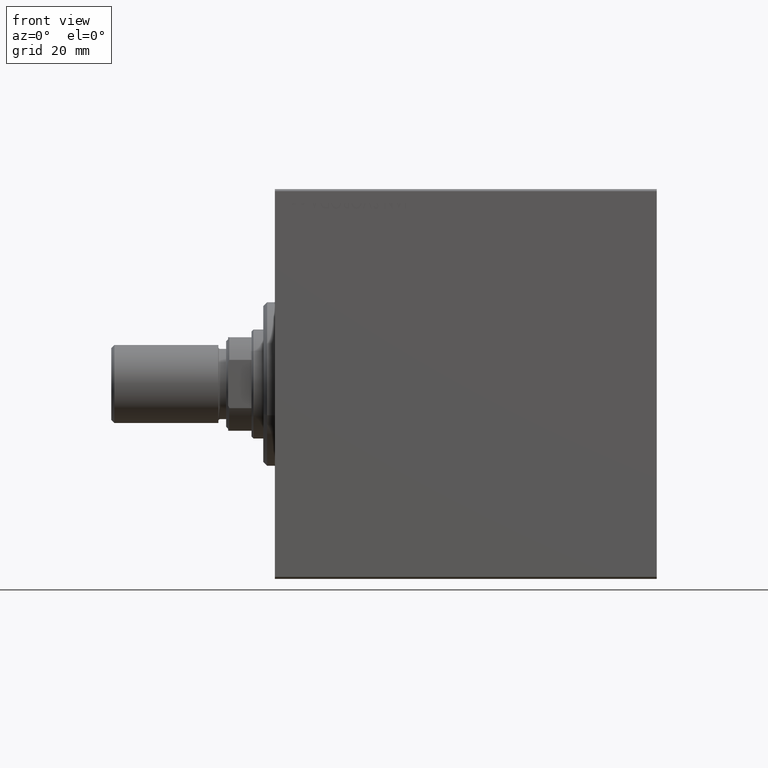
[diagram: clean part render]
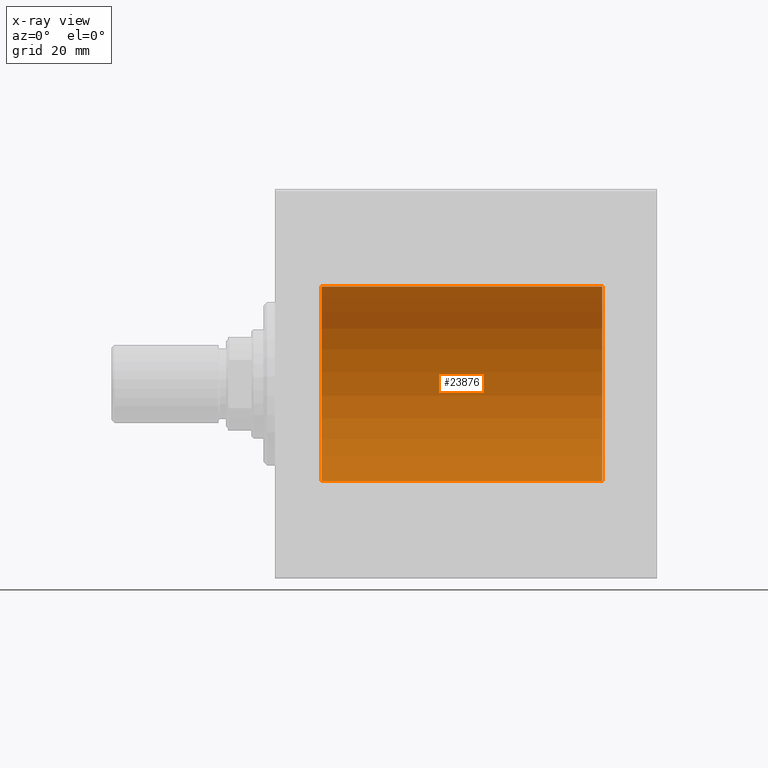
[diagram: x-ray — body ghosted, one internal face saturated and labeled with its STEP entity id]
A machine part, front view, then the same camera in x-ray: the body is ghosted and one INTERNAL B-rep face — a face not visible from any outside direction — is saturated and labeled: STEP entity #23876.
In plain terms, the highlighted cylindrical surface (partial cylindrical patch) has radius 25 mm, axis along (-1, -0, -0).
Its self-contained STEP definition (entity closure, byte-faithful):
#436 = CARTESIAN_POINT ( 'NONE',  ( 11.99999999999999645, 0.000000000000000000, 0.000000000000000000 ) ) ;
#2114 = CARTESIAN_POINT ( 'NONE',  ( 11.99999999999999645, 0.000000000000000000, 25.00000000000000000 ) ) ;
#2340 = VERTEX_POINT ( 'NONE', #19045 ) ;
#7953 = VERTEX_POINT ( 'NONE', #28502 ) ;
#8270 = EDGE_LOOP ( 'NONE', ( #37319, #41225, #41701, #14211 ) ) ;
#8300 = VECTOR ( 'NONE', #39392, 1000.000000000000000 ) ;
#8349 = FACE_OUTER_BOUND ( 'NONE', #8270, .T. ) ;
#8386 = LINE ( 'NONE', #21971, #37551 ) ;
#8796 = DIRECTION ( 'NONE',  ( -1.000000000000000000, -0.000000000000000000, -0.000000000000000000 ) ) ;
#9103 = DIRECTION ( 'NONE',  ( 0.000000000000000000, 0.000000000000000000, 1.000000000000000000 ) ) ;
#12706 = CARTESIAN_POINT ( 'NONE',  ( 11.99999999999999645, 3.061616997868382254E-15, -25.00000000000000000 ) ) ;
#14036 = DIRECTION ( 'NONE',  ( 0.000000000000000000, 0.000000000000000000, 1.000000000000000000 ) ) ;
#14211 = ORIENTED_EDGE ( 'NONE', *, *, #23519, .T. ) ;
#15136 = CIRCLE ( 'NONE', #29380, 25.00000000000000000 ) ;
#15689 = CARTESIAN_POINT ( 'NONE',  ( 84.00000000000000000, 0.000000000000000000, 0.000000000000000000 ) ) ;
#17098 = EDGE_CURVE ( 'NONE', #2340, #7953, #15136, .T. ) ;
#19045 = CARTESIAN_POINT ( 'NONE',  ( 84.00000000000000000, 0.000000000000000000, 25.00000000000000000 ) ) ;
#21750 = CARTESIAN_POINT ( 'NONE',  ( 84.00000000000000000, 0.000000000000000000, 25.00000000000000000 ) ) ;
#21788 = DIRECTION ( 'NONE',  ( -1.000000000000000000, 0.000000000000000000, 0.000000000000000000 ) ) ;
#21971 = CARTESIAN_POINT ( 'NONE',  ( 84.00000000000000000, 3.061616997868382254E-15, -25.00000000000000000 ) ) ;
#22689 = CARTESIAN_POINT ( 'NONE',  ( 84.00000000000000000, 0.000000000000000000, 0.000000000000000000 ) ) ;
#23048 = AXIS2_PLACEMENT_3D ( 'NONE', #436, #23863, #14036 ) ;
#23519 = EDGE_CURVE ( 'NONE', #29514, #27168, #27308, .T. ) ;
#23863 = DIRECTION ( 'NONE',  ( -1.000000000000000000, 0.000000000000000000, 0.000000000000000000 ) ) ;
#23876 = ADVANCED_FACE ( 'NONE', ( #8349 ), #39132, .F. ) ;
#27168 = VERTEX_POINT ( 'NONE', #12706 ) ;
#27308 = CIRCLE ( 'NONE', #23048, 25.00000000000000000 ) ;
#27342 = AXIS2_PLACEMENT_3D ( 'NONE', #15689, #8796, #32411 ) ;
#28502 = CARTESIAN_POINT ( 'NONE',  ( 84.00000000000000000, 3.061616997868382254E-15, -25.00000000000000000 ) ) ;
#29380 = AXIS2_PLACEMENT_3D ( 'NONE', #22689, #21788, #9103 ) ;
#29514 = VERTEX_POINT ( 'NONE', #2114 ) ;
#31998 = LINE ( 'NONE', #21750, #8300 ) ;
#32007 = EDGE_CURVE ( 'NONE', #2340, #29514, #31998, .T. ) ;
#32076 = EDGE_CURVE ( 'NONE', #7953, #27168, #8386, .T. ) ;
#32411 = DIRECTION ( 'NONE',  ( 0.000000000000000000, 0.000000000000000000, 1.000000000000000000 ) ) ;
#37319 = ORIENTED_EDGE ( 'NONE', *, *, #32076, .F. ) ;
#37551 = VECTOR ( 'NONE', #41088, 1000.000000000000000 ) ;
#39132 = CYLINDRICAL_SURFACE ( 'NONE', #27342, 25.00000000000000000 ) ;
#39392 = DIRECTION ( 'NONE',  ( -1.000000000000000000, -0.000000000000000000, -0.000000000000000000 ) ) ;
#41088 = DIRECTION ( 'NONE',  ( -1.000000000000000000, -0.000000000000000000, -0.000000000000000000 ) ) ;
#41225 = ORIENTED_EDGE ( 'NONE', *, *, #17098, .F. ) ;
#41701 = ORIENTED_EDGE ( 'NONE', *, *, #32007, .T. ) ;